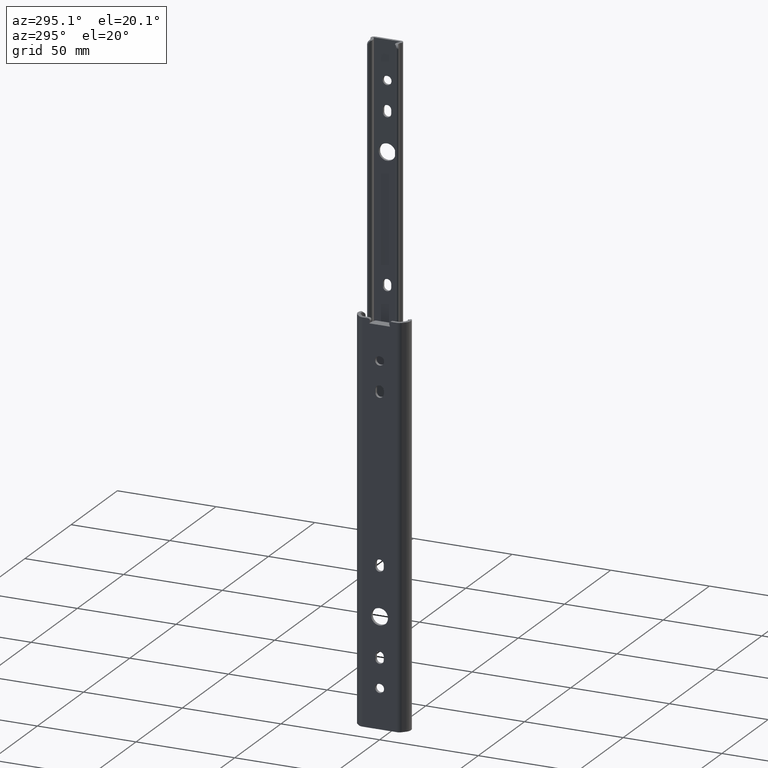
[diagram: clean part render]
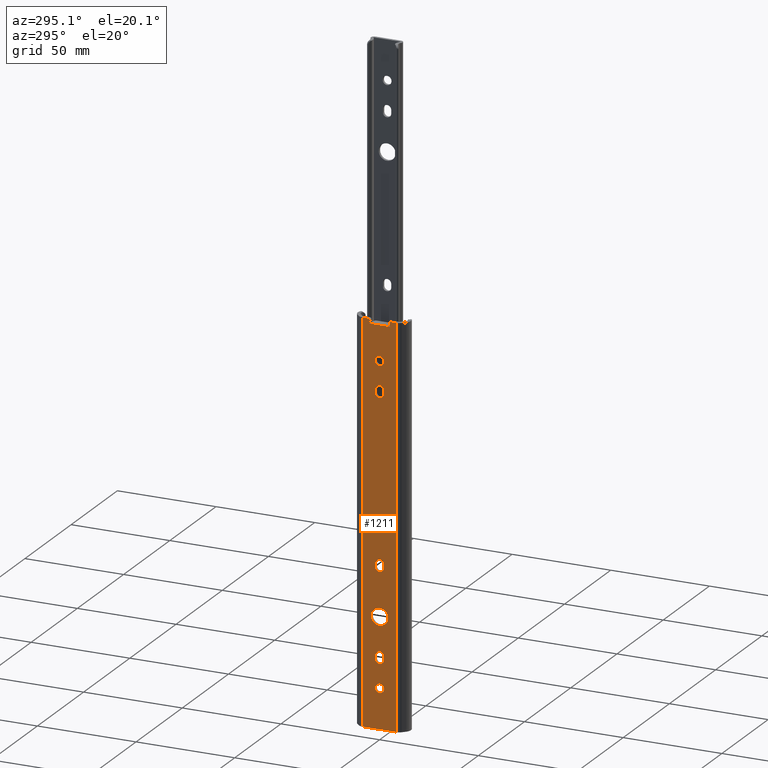
[diagram: same view with one face highlighted and labeled with its STEP entity id]
A machine part, auxiliary view. The second image highlights one B-rep face of the part: STEP entity #1211.
In plain terms, the highlighted planar face has unit normal (-1, 0, 0).
Its self-contained STEP definition (entity closure, byte-faithful):
#5 = DIRECTION ( 'NONE',  ( 0.0000000000000000000, 0.0000000000000000000, -1.000000000000000000 ) ) ;
#26 = CARTESIAN_POINT ( 'NONE',  ( -3.404394821604483923E-14, 2.100000000000000089, -165.9000000000000057 ) ) ;
#46 = CIRCLE ( 'NONE', #3595, 2.099999999999997868 ) ;
#55 = ORIENTED_EDGE ( 'NONE', *, *, #4087, .T. ) ;
#57 = DIRECTION ( 'NONE',  ( 0.0000000000000000000, 2.409338161078941089E-16, -1.000000000000000000 ) ) ;
#66 = VERTEX_POINT ( 'NONE', #4151 ) ;
#69 = EDGE_CURVE ( 'NONE', #1494, #2689, #2999, .T. ) ;
#75 = CARTESIAN_POINT ( 'NONE',  ( 0.0000000000000000000, -5.250000000000000000, -2.400000000000000355 ) ) ;
#84 = DIRECTION ( 'NONE',  ( -1.000000000000000000, 0.0000000000000000000, 0.0000000000000000000 ) ) ;
#92 = VERTEX_POINT ( 'NONE', #2408 ) ;
#94 = ORIENTED_EDGE ( 'NONE', *, *, #4275, .T. ) ;
#109 = AXIS2_PLACEMENT_3D ( 'NONE', #1851, #506, #4131 ) ;
#111 = DIRECTION ( 'NONE',  ( 0.0000000000000000000, 0.0000000000000000000, -1.000000000000000000 ) ) ;
#118 = VERTEX_POINT ( 'NONE', #3427 ) ;
#135 = VERTEX_POINT ( 'NONE', #4050 ) ;
#148 = DIRECTION ( 'NONE',  ( 0.0000000000000000000, 0.0000000000000000000, -1.000000000000000000 ) ) ;
#151 = DIRECTION ( 'NONE',  ( 1.000000000000000000, 0.0000000000000000000, 0.0000000000000000000 ) ) ;
#170 = AXIS2_PLACEMENT_3D ( 'NONE', #3646, #671, #3625 ) ;
#172 = AXIS2_PLACEMENT_3D ( 'NONE', #841, #151, #111 ) ;
#176 = AXIS2_PLACEMENT_3D ( 'NONE', #4255, #3964, #2253 ) ;
#194 = LINE ( 'NONE', #494, #4133 ) ;
#200 = VERTEX_POINT ( 'NONE', #75 ) ;
#203 = LINE ( 'NONE', #1532, #3616 ) ;
#222 = FACE_BOUND ( 'NONE', #3306, .T. ) ;
#302 = FACE_BOUND ( 'NONE', #4254, .T. ) ;
#307 = VECTOR ( 'NONE', #1118, 1000.000000000000000 ) ;
#359 = CIRCLE ( 'NONE', #2865, 2.250000000000001776 ) ;
#367 = CARTESIAN_POINT ( 'NONE',  ( -3.404394821604483923E-14, 2.100000000000000089, -119.1000000000000085 ) ) ;
#369 = EDGE_CURVE ( 'NONE', #752, #2101, #1841, .T. ) ;
#402 = ORIENTED_EDGE ( 'NONE', *, *, #1991, .F. ) ;
#408 = ORIENTED_EDGE ( 'NONE', *, *, #3871, .T. ) ;
#410 = CARTESIAN_POINT ( 'NONE',  ( -3.404394821604483923E-14, 0.0000000000000000000, -20.00000000000000000 ) ) ;
#440 = VECTOR ( 'NONE', #2063, 1000.000000000000000 ) ;
#444 = EDGE_CURVE ( 'NONE', #588, #1337, #359, .T. ) ;
#475 = ORIENTED_EDGE ( 'NONE', *, *, #1223, .T. ) ;
#477 = DIRECTION ( 'NONE',  ( 0.0000000000000000000, -0.2982749931359470752, -0.9544799780350297080 ) ) ;
#494 = CARTESIAN_POINT ( 'NONE',  ( -3.404394821604483923E-14, -2.100000000000000089, -34.10000000000000853 ) ) ;
#505 = CARTESIAN_POINT ( 'NONE',  ( 0.0000000000000000000, 5.860190913390014522, 0.0000000000000000000 ) ) ;
#506 = DIRECTION ( 'NONE',  ( 1.000000000000000000, 0.0000000000000000000, 0.0000000000000000000 ) ) ;
#535 = CARTESIAN_POINT ( 'NONE',  ( 0.0000000000000000000, 5.250000000000000000, -2.400000000000000355 ) ) ;
#538 = CARTESIAN_POINT ( 'NONE',  ( 0.0000000000000000000, -4.905710935354983704, -1.298274993135946964 ) ) ;
#555 = CARTESIAN_POINT ( 'NONE',  ( -3.404394821604483923E-14, 3.306546357697844366E-16, -167.9999999999999716 ) ) ;
#588 = VERTEX_POINT ( 'NONE', #3380 ) ;
#597 = AXIS2_PLACEMENT_3D ( 'NONE', #1491, #2821, #4142 ) ;
#618 = DIRECTION ( 'NONE',  ( 0.0000000000000000000, -1.000000000000000000, 0.0000000000000000000 ) ) ;
#621 = VERTEX_POINT ( 'NONE', #26 ) ;
#659 = EDGE_CURVE ( 'NONE', #200, #752, #3742, .T. ) ;
#668 = ORIENTED_EDGE ( 'NONE', *, *, #369, .T. ) ;
#671 = DIRECTION ( 'NONE',  ( 1.000000000000000000, 0.0000000000000000000, 0.0000000000000000000 ) ) ;
#681 = EDGE_CURVE ( 'NONE', #621, #2280, #3010, .T. ) ;
#692 = EDGE_CURVE ( 'NONE', #3339, #3076, #1058, .T. ) ;
#698 = CARTESIAN_POINT ( 'NONE',  ( -3.404394821604483923E-14, 0.0000000000000000000, -182.2500000000000000 ) ) ;
#702 = DIRECTION ( 'NONE',  ( 0.0000000000000000000, 0.0000000000000000000, -1.000000000000000000 ) ) ;
#752 = VERTEX_POINT ( 'NONE', #535 ) ;
#770 = CARTESIAN_POINT ( 'NONE',  ( 0.0000000000000000000, 4.905710935354983704, -1.298274993135947186 ) ) ;
#774 = DIRECTION ( 'NONE',  ( 0.0000000000000000000, 1.000000000000000000, 0.0000000000000000000 ) ) ;
#775 = VERTEX_POINT ( 'NONE', #884 ) ;
#780 = VERTEX_POINT ( 'NONE', #4138 ) ;
#807 = DIRECTION ( 'NONE',  ( 1.000000000000000000, 0.0000000000000000000, 0.0000000000000000000 ) ) ;
#815 = AXIS2_PLACEMENT_3D ( 'NONE', #1731, #1751, #3357 ) ;
#836 = EDGE_CURVE ( 'NONE', #92, #1252, #203, .T. ) ;
#839 = CARTESIAN_POINT ( 'NONE',  ( 0.0000000000000000000, -5.860190913390013634, 0.0000000000000000000 ) ) ;
#841 = CARTESIAN_POINT ( 'NONE',  ( -3.404394821604483923E-14, 0.0000000000000000000, -145.0000000000000284 ) ) ;
#855 = VECTOR ( 'NONE', #2687, 1000.000000000000000 ) ;
#870 = DIRECTION ( 'NONE',  ( 0.0000000000000000000, 0.0000000000000000000, -1.000000000000000000 ) ) ;
#884 = CARTESIAN_POINT ( 'NONE',  ( -3.404394821604483923E-14, -2.100000000000000089, -164.1000000000000227 ) ) ;
#901 = FACE_OUTER_BOUND ( 'NONE', #3181, .T. ) ;
#950 = LINE ( 'NONE', #1620, #3312 ) ;
#955 = VECTOR ( 'NONE', #1024, 1000.000000000000000 ) ;
#968 = FACE_BOUND ( 'NONE', #994, .T. ) ;
#994 = EDGE_LOOP ( 'NONE', ( #2376, #2972 ) ) ;
#1005 = EDGE_CURVE ( 'NONE', #2689, #1747, #1663, .T. ) ;
#1013 = AXIS2_PLACEMENT_3D ( 'NONE', #2213, #807, #2539 ) ;
#1024 = DIRECTION ( 'NONE',  ( -0.0000000000000000000, -2.409338161078904111E-16, 1.000000000000000000 ) ) ;
#1051 = AXIS2_PLACEMENT_3D ( 'NONE', #3066, #84, #3973 ) ;
#1053 = VERTEX_POINT ( 'NONE', #3352 ) ;
#1058 = CIRCLE ( 'NONE', #2171, 1.000000000000000000 ) ;
#1071 = PLANE ( 'NONE',  #1051 ) ;
#1080 = ORIENTED_EDGE ( 'NONE', *, *, #69, .T. ) ;
#1110 = CARTESIAN_POINT ( 'NONE',  ( 0.0000000000000000000, 8.689360748630832632, -200.0000000000000000 ) ) ;
#1118 = DIRECTION ( 'NONE',  ( -0.0000000000000000000, -1.000000000000000000, -0.0000000000000000000 ) ) ;
#1131 = VECTOR ( 'NONE', #774, 1000.000000000000000 ) ;
#1180 = ORIENTED_EDGE ( 'NONE', *, *, #3848, .T. ) ;
#1207 = VERTEX_POINT ( 'NONE', #3937 ) ;
#1211 = ADVANCED_FACE ( 'NONE', ( #968, #1959, #222, #302, #1896, #3533, #901 ), #1071, .T. ) ;
#1223 = EDGE_CURVE ( 'NONE', #1747, #3504, #3484, .T. ) ;
#1225 = VECTOR ( 'NONE', #57, 1000.000000000000000 ) ;
#1247 = EDGE_CURVE ( 'NONE', #66, #1494, #1741, .T. ) ;
#1252 = VERTEX_POINT ( 'NONE', #3392 ) ;
#1326 = VECTOR ( 'NONE', #2635, 1000.000000000000000 ) ;
#1337 = VERTEX_POINT ( 'NONE', #698 ) ;
#1354 = CIRCLE ( 'NONE', #176, 1.000000000000000000 ) ;
#1355 = CARTESIAN_POINT ( 'NONE',  ( -3.404394821604483923E-14, 2.100000000000000089, -164.1000000000000227 ) ) ;
#1358 = AXIS2_PLACEMENT_3D ( 'NONE', #410, #3129, #148 ) ;
#1406 = EDGE_CURVE ( 'NONE', #4044, #3271, #3915, .T. ) ;
#1420 = ORIENTED_EDGE ( 'NONE', *, *, #444, .T. ) ;
#1444 = VERTEX_POINT ( 'NONE', #505 ) ;
#1473 = DIRECTION ( 'NONE',  ( 0.0000000000000000000, 2.409338161078904111E-16, -1.000000000000000000 ) ) ;
#1483 = ORIENTED_EDGE ( 'NONE', *, *, #659, .T. ) ;
#1484 = CARTESIAN_POINT ( 'NONE',  ( 0.0000000000000000000, -8.689360748630832632, 0.0000000000000000000 ) ) ;
#1491 = CARTESIAN_POINT ( 'NONE',  ( -3.404394821604483923E-14, 3.306546357697844366E-16, -35.89999999999999858 ) ) ;
#1494 = VERTEX_POINT ( 'NONE', #2110 ) ;
#1498 = AXIS2_PLACEMENT_3D ( 'NONE', #2518, #1540, #870 ) ;
#1514 = CARTESIAN_POINT ( 'NONE',  ( 0.0000000000000000000, -5.860190913390013634, -1.000000000000000000 ) ) ;
#1519 = ORIENTED_EDGE ( 'NONE', *, *, #692, .T. ) ;
#1520 = DIRECTION ( 'NONE',  ( 0.0000000000000000000, -0.2982749931359470197, 0.9544799780350297080 ) ) ;
#1526 = CARTESIAN_POINT ( 'NONE',  ( 0.0000000000000000000, -2.099999999999999201, -165.9000000000000057 ) ) ;
#1532 = CARTESIAN_POINT ( 'NONE',  ( 0.0000000000000000000, -8.689360748630832632, -200.0000000000000000 ) ) ;
#1540 = DIRECTION ( 'NONE',  ( 1.000000000000000000, 0.0000000000000000000, 0.0000000000000000000 ) ) ;
#1542 = CARTESIAN_POINT ( 'NONE',  ( -3.404394821604483923E-14, -2.407412430484044816E-32, -119.1000000000000085 ) ) ;
#1562 = AXIS2_PLACEMENT_3D ( 'NONE', #3931, #1613, #3866 ) ;
#1577 = EDGE_CURVE ( 'NONE', #3401, #3888, #3085, .T. ) ;
#1590 = CARTESIAN_POINT ( 'NONE',  ( -3.404394821604483923E-14, 3.306546357697844366E-16, -123.0000000000000142 ) ) ;
#1604 = ORIENTED_EDGE ( 'NONE', *, *, #1005, .T. ) ;
#1613 = DIRECTION ( 'NONE',  ( 1.000000000000000000, 0.0000000000000000000, 0.0000000000000000000 ) ) ;
#1620 = CARTESIAN_POINT ( 'NONE',  ( 0.0000000000000000000, 8.689360748630832632, -200.0000000000000000 ) ) ;
#1663 = LINE ( 'NONE', #3657, #3063 ) ;
#1671 = LINE ( 'NONE', #3645, #955 ) ;
#1731 = CARTESIAN_POINT ( 'NONE',  ( -3.404394821604483923E-14, 3.306546357697844366E-16, -165.9000000000000057 ) ) ;
#1741 = LINE ( 'NONE', #367, #1326 ) ;
#1742 = CARTESIAN_POINT ( 'NONE',  ( -3.404394821604483923E-14, 0.0000000000000000000, -22.25000000000000000 ) ) ;
#1747 = VERTEX_POINT ( 'NONE', #3281 ) ;
#1751 = DIRECTION ( 'NONE',  ( 1.000000000000000000, 0.0000000000000000000, 0.0000000000000000000 ) ) ;
#1755 = CARTESIAN_POINT ( 'NONE',  ( -3.404394821604483923E-14, -2.100000000000000089, -164.1000000000000227 ) ) ;
#1756 = EDGE_CURVE ( 'NONE', #3339, #1252, #4285, .T. ) ;
#1824 = EDGE_CURVE ( 'NONE', #1053, #135, #2412, .T. ) ;
#1841 = LINE ( 'NONE', #3171, #3554 ) ;
#1851 = CARTESIAN_POINT ( 'NONE',  ( -3.404394821604483923E-14, -2.407412430484044816E-32, -164.1000000000000227 ) ) ;
#1859 = EDGE_LOOP ( 'NONE', ( #1080, #1604, #475, #3563, #1926 ) ) ;
#1896 = FACE_BOUND ( 'NONE', #1859, .T. ) ;
#1897 = DIRECTION ( 'NONE',  ( 0.0000000000000000000, 0.0000000000000000000, 1.000000000000000000 ) ) ;
#1926 = ORIENTED_EDGE ( 'NONE', *, *, #1247, .T. ) ;
#1945 = VERTEX_POINT ( 'NONE', #2559 ) ;
#1959 = FACE_BOUND ( 'NONE', #2722, .T. ) ;
#1991 = EDGE_CURVE ( 'NONE', #135, #1444, #2838, .T. ) ;
#2035 = DIRECTION ( 'NONE',  ( -0.0000000000000000000, -1.000000000000000000, -0.0000000000000000000 ) ) ;
#2061 = AXIS2_PLACEMENT_3D ( 'NONE', #3676, #2071, #702 ) ;
#2063 = DIRECTION ( 'NONE',  ( 0.0000000000000000000, 0.0000000000000000000, 1.000000000000000000 ) ) ;
#2071 = DIRECTION ( 'NONE',  ( 1.000000000000000000, 0.0000000000000000000, 0.0000000000000000000 ) ) ;
#2101 = VERTEX_POINT ( 'NONE', #770 ) ;
#2107 = ORIENTED_EDGE ( 'NONE', *, *, #2554, .T. ) ;
#2110 = CARTESIAN_POINT ( 'NONE',  ( -3.404394821604483923E-14, 2.100000000000000089, -119.1000000000000085 ) ) ;
#2171 = AXIS2_PLACEMENT_3D ( 'NONE', #1514, #2857, #3812 ) ;
#2180 = ORIENTED_EDGE ( 'NONE', *, *, #1406, .T. ) ;
#2192 = CIRCLE ( 'NONE', #1013, 2.249999999999998668 ) ;
#2209 = VERTEX_POINT ( 'NONE', #1526 ) ;
#2213 = CARTESIAN_POINT ( 'NONE',  ( -3.404394821604483923E-14, 0.0000000000000000000, -20.00000000000000000 ) ) ;
#2235 = ORIENTED_EDGE ( 'NONE', *, *, #1756, .F. ) ;
#2253 = DIRECTION ( 'NONE',  ( 0.0000000000000000000, 0.0000000000000000000, 1.000000000000000000 ) ) ;
#2267 = CIRCLE ( 'NONE', #597, 2.099999999999997868 ) ;
#2270 = AXIS2_PLACEMENT_3D ( 'NONE', #2382, #4078, #3750 ) ;
#2280 = VERTEX_POINT ( 'NONE', #3905 ) ;
#2285 = EDGE_CURVE ( 'NONE', #3100, #621, #2535, .T. ) ;
#2306 = EDGE_LOOP ( 'NONE', ( #3962, #2107, #1180, #3400, #3765 ) ) ;
#2315 = ORIENTED_EDGE ( 'NONE', *, *, #1824, .F. ) ;
#2318 = CARTESIAN_POINT ( 'NONE',  ( -3.404394821604483923E-14, -2.100000000000000089, -119.1000000000000085 ) ) ;
#2333 = DIRECTION ( 'NONE',  ( 0.0000000000000000000, 2.409338161078904111E-16, -1.000000000000000000 ) ) ;
#2376 = ORIENTED_EDGE ( 'NONE', *, *, #2685, .T. ) ;
#2382 = CARTESIAN_POINT ( 'NONE',  ( -3.404394821604483923E-14, 3.306546357697844366E-16, -120.9000000000000057 ) ) ;
#2408 = CARTESIAN_POINT ( 'NONE',  ( 0.0000000000000000000, -8.689360748630832632, -200.0000000000000000 ) ) ;
#2412 = LINE ( 'NONE', #1110, #440 ) ;
#2518 = CARTESIAN_POINT ( 'NONE',  ( -3.404394821604483923E-14, 0.0000000000000000000, -180.0000000000000000 ) ) ;
#2535 = CIRCLE ( 'NONE', #170, 2.099999999999990763 ) ;
#2539 = DIRECTION ( 'NONE',  ( 0.0000000000000000000, 0.0000000000000000000, -1.000000000000000000 ) ) ;
#2545 = VECTOR ( 'NONE', #477, 1000.000000000000000 ) ;
#2554 = EDGE_CURVE ( 'NONE', #3888, #1945, #194, .T. ) ;
#2556 = DIRECTION ( 'NONE',  ( 1.000000000000000000, 0.0000000000000000000, 0.0000000000000000000 ) ) ;
#2559 = CARTESIAN_POINT ( 'NONE',  ( 0.0000000000000000000, -2.099999999999999201, -35.90000000000001279 ) ) ;
#2593 = CARTESIAN_POINT ( 'NONE',  ( -3.404394821604483923E-14, 3.306546357697844366E-16, -35.89999999999999858 ) ) ;
#2632 = ORIENTED_EDGE ( 'NONE', *, *, #2949, .T. ) ;
#2635 = DIRECTION ( 'NONE',  ( -0.0000000000000000000, -2.409338161078904111E-16, 1.000000000000000000 ) ) ;
#2658 = CARTESIAN_POINT ( 'NONE',  ( -3.404394821604483923E-14, 0.0000000000000000000, -149.2500000000000284 ) ) ;
#2659 = EDGE_CURVE ( 'NONE', #1337, #588, #2953, .T. ) ;
#2670 = CARTESIAN_POINT ( 'NONE',  ( 0.0000000000000000000, -8.689360748630832632, 0.0000000000000000000 ) ) ;
#2685 = EDGE_CURVE ( 'NONE', #4156, #780, #2192, .T. ) ;
#2687 = DIRECTION ( 'NONE',  ( -0.0000000000000000000, -2.409338161078941089E-16, 1.000000000000000000 ) ) ;
#2689 = VERTEX_POINT ( 'NONE', #2318 ) ;
#2704 = CARTESIAN_POINT ( 'NONE',  ( 0.0000000000000000000, 5.250000000000000000, -2.400000000000000355 ) ) ;
#2707 = EDGE_CURVE ( 'NONE', #2101, #1444, #1354, .T. ) ;
#2722 = EDGE_LOOP ( 'NONE', ( #2180, #55 ) ) ;
#2736 = VECTOR ( 'NONE', #2035, 1000.000000000000000 ) ;
#2737 = LINE ( 'NONE', #3462, #2545 ) ;
#2821 = DIRECTION ( 'NONE',  ( 1.000000000000000000, 0.0000000000000000000, 0.0000000000000000000 ) ) ;
#2833 = CARTESIAN_POINT ( 'NONE',  ( -3.404394821604483923E-14, 2.100000000000000089, -34.10000000000000853 ) ) ;
#2838 = LINE ( 'NONE', #1484, #307 ) ;
#2857 = DIRECTION ( 'NONE',  ( -1.000000000000000000, 0.0000000000000000000, 0.0000000000000000000 ) ) ;
#2858 = ORIENTED_EDGE ( 'NONE', *, *, #2707, .T. ) ;
#2865 = AXIS2_PLACEMENT_3D ( 'NONE', #3601, #2989, #5 ) ;
#2867 = DIRECTION ( 'NONE',  ( 0.0000000000000000000, 0.0000000000000000000, -1.000000000000000000 ) ) ;
#2949 = EDGE_CURVE ( 'NONE', #2209, #3100, #2959, .T. ) ;
#2953 = CIRCLE ( 'NONE', #1498, 2.250000000000001776 ) ;
#2959 = CIRCLE ( 'NONE', #815, 2.099999999999990763 ) ;
#2972 = ORIENTED_EDGE ( 'NONE', *, *, #3268, .T. ) ;
#2989 = DIRECTION ( 'NONE',  ( 1.000000000000000000, 0.0000000000000000000, 0.0000000000000000000 ) ) ;
#2999 = CIRCLE ( 'NONE', #3206, 2.100000000000004530 ) ;
#3010 = LINE ( 'NONE', #1355, #855 ) ;
#3024 = DIRECTION ( 'NONE',  ( 1.000000000000000000, 0.0000000000000000000, 0.0000000000000000000 ) ) ;
#3034 = CIRCLE ( 'NONE', #2061, 4.250000000000003553 ) ;
#3044 = CARTESIAN_POINT ( 'NONE',  ( -3.404394821604483923E-14, 5.204748896376259574E-16, -140.7500000000000000 ) ) ;
#3063 = VECTOR ( 'NONE', #2333, 1000.000000000000000 ) ;
#3066 = CARTESIAN_POINT ( 'NONE',  ( 0.0000000000000000000, -8.689360748630832632, -200.0000000000000000 ) ) ;
#3070 = ORIENTED_EDGE ( 'NONE', *, *, #3662, .T. ) ;
#3076 = VERTEX_POINT ( 'NONE', #538 ) ;
#3079 = EDGE_CURVE ( 'NONE', #1207, #118, #2267, .T. ) ;
#3085 = CIRCLE ( 'NONE', #1562, 2.099999999999997868 ) ;
#3091 = CIRCLE ( 'NONE', #109, 2.099999999999990763 ) ;
#3100 = VERTEX_POINT ( 'NONE', #555 ) ;
#3103 = LINE ( 'NONE', #1755, #1225 ) ;
#3129 = DIRECTION ( 'NONE',  ( 1.000000000000000000, 0.0000000000000000000, 0.0000000000000000000 ) ) ;
#3171 = CARTESIAN_POINT ( 'NONE',  ( 0.0000000000000000000, 5.250000000000000000, -2.400000000000000355 ) ) ;
#3181 = EDGE_LOOP ( 'NONE', ( #2235, #1519, #4160, #1483, #668, #2858, #402, #2315, #408, #3876 ) ) ;
#3206 = AXIS2_PLACEMENT_3D ( 'NONE', #1542, #3840, #2867 ) ;
#3268 = EDGE_CURVE ( 'NONE', #780, #4156, #3649, .T. ) ;
#3271 = VERTEX_POINT ( 'NONE', #3044 ) ;
#3281 = CARTESIAN_POINT ( 'NONE',  ( 0.0000000000000000000, -2.099999999999999645, -120.9000000000000057 ) ) ;
#3291 = EDGE_CURVE ( 'NONE', #3076, #200, #2737, .T. ) ;
#3306 = EDGE_LOOP ( 'NONE', ( #4049, #1420 ) ) ;
#3312 = VECTOR ( 'NONE', #618, 1000.000000000000000 ) ;
#3339 = VERTEX_POINT ( 'NONE', #839 ) ;
#3352 = CARTESIAN_POINT ( 'NONE',  ( 0.0000000000000000000, 8.689360748630832632, -200.0000000000000000 ) ) ;
#3357 = DIRECTION ( 'NONE',  ( 0.0000000000000000000, 0.0000000000000000000, -1.000000000000000000 ) ) ;
#3380 = CARTESIAN_POINT ( 'NONE',  ( -3.404394821604483923E-14, 2.755455298081564006E-16, -177.7500000000000000 ) ) ;
#3392 = CARTESIAN_POINT ( 'NONE',  ( 0.0000000000000000000, -8.689360748630832632, 0.0000000000000000000 ) ) ;
#3400 = ORIENTED_EDGE ( 'NONE', *, *, #3079, .T. ) ;
#3401 = VERTEX_POINT ( 'NONE', #2833 ) ;
#3403 = ORIENTED_EDGE ( 'NONE', *, *, #2285, .T. ) ;
#3427 = CARTESIAN_POINT ( 'NONE',  ( -3.404394821604483923E-14, 2.100000000000000089, -35.89999999999999858 ) ) ;
#3462 = CARTESIAN_POINT ( 'NONE',  ( 0.0000000000000000000, -5.250000000000000000, -2.400000000000000355 ) ) ;
#3484 = CIRCLE ( 'NONE', #3891, 2.100000000000004530 ) ;
#3504 = VERTEX_POINT ( 'NONE', #1590 ) ;
#3533 = FACE_BOUND ( 'NONE', #2306, .T. ) ;
#3552 = CARTESIAN_POINT ( 'NONE',  ( -3.404394821604483923E-14, -2.100000000000000089, -34.10000000000000853 ) ) ;
#3554 = VECTOR ( 'NONE', #1520, 1000.000000000000000 ) ;
#3563 = ORIENTED_EDGE ( 'NONE', *, *, #3663, .T. ) ;
#3595 = AXIS2_PLACEMENT_3D ( 'NONE', #2593, #2556, #3939 ) ;
#3601 = CARTESIAN_POINT ( 'NONE',  ( -3.404394821604483923E-14, 0.0000000000000000000, -180.0000000000000000 ) ) ;
#3616 = VECTOR ( 'NONE', #1897, 1000.000000000000000 ) ;
#3625 = DIRECTION ( 'NONE',  ( 0.0000000000000000000, 0.0000000000000000000, -1.000000000000000000 ) ) ;
#3631 = EDGE_CURVE ( 'NONE', #118, #3401, #1671, .T. ) ;
#3645 = CARTESIAN_POINT ( 'NONE',  ( -3.404394821604483923E-14, 2.100000000000000089, -34.10000000000000853 ) ) ;
#3646 = CARTESIAN_POINT ( 'NONE',  ( -3.404394821604483923E-14, 3.306546357697844366E-16, -165.9000000000000057 ) ) ;
#3649 = CIRCLE ( 'NONE', #1358, 2.249999999999998668 ) ;
#3657 = CARTESIAN_POINT ( 'NONE',  ( -3.404394821604483923E-14, -2.100000000000000089, -119.1000000000000085 ) ) ;
#3662 = EDGE_CURVE ( 'NONE', #775, #2209, #3103, .T. ) ;
#3663 = EDGE_CURVE ( 'NONE', #3504, #66, #3996, .T. ) ;
#3676 = CARTESIAN_POINT ( 'NONE',  ( -3.404394821604483923E-14, 0.0000000000000000000, -145.0000000000000284 ) ) ;
#3724 = ORIENTED_EDGE ( 'NONE', *, *, #681, .T. ) ;
#3742 = LINE ( 'NONE', #2704, #1131 ) ;
#3750 = DIRECTION ( 'NONE',  ( 0.0000000000000000000, 0.0000000000000000000, -1.000000000000000000 ) ) ;
#3765 = ORIENTED_EDGE ( 'NONE', *, *, #3631, .T. ) ;
#3812 = DIRECTION ( 'NONE',  ( 0.0000000000000000000, 0.0000000000000000000, 1.000000000000000000 ) ) ;
#3840 = DIRECTION ( 'NONE',  ( 1.000000000000000000, 0.0000000000000000000, 0.0000000000000000000 ) ) ;
#3848 = EDGE_CURVE ( 'NONE', #1945, #1207, #46, .T. ) ;
#3866 = DIRECTION ( 'NONE',  ( 0.0000000000000000000, 0.0000000000000000000, -1.000000000000000000 ) ) ;
#3871 = EDGE_CURVE ( 'NONE', #1053, #92, #950, .T. ) ;
#3876 = ORIENTED_EDGE ( 'NONE', *, *, #836, .T. ) ;
#3888 = VERTEX_POINT ( 'NONE', #3552 ) ;
#3891 = AXIS2_PLACEMENT_3D ( 'NONE', #4039, #3024, #3953 ) ;
#3905 = CARTESIAN_POINT ( 'NONE',  ( -3.404394821604483923E-14, 2.100000000000000089, -164.1000000000000227 ) ) ;
#3915 = CIRCLE ( 'NONE', #172, 4.250000000000003553 ) ;
#3931 = CARTESIAN_POINT ( 'NONE',  ( -3.404394821604483923E-14, -2.407412430484044816E-32, -34.10000000000000853 ) ) ;
#3937 = CARTESIAN_POINT ( 'NONE',  ( -3.404394821604483923E-14, 3.306546357697844366E-16, -38.00000000000000000 ) ) ;
#3939 = DIRECTION ( 'NONE',  ( 0.0000000000000000000, 0.0000000000000000000, -1.000000000000000000 ) ) ;
#3953 = DIRECTION ( 'NONE',  ( 0.0000000000000000000, 0.0000000000000000000, -1.000000000000000000 ) ) ;
#3962 = ORIENTED_EDGE ( 'NONE', *, *, #1577, .T. ) ;
#3964 = DIRECTION ( 'NONE',  ( -1.000000000000000000, 0.0000000000000000000, 0.0000000000000000000 ) ) ;
#3973 = DIRECTION ( 'NONE',  ( 0.0000000000000000000, 0.0000000000000000000, 1.000000000000000000 ) ) ;
#3996 = CIRCLE ( 'NONE', #2270, 2.100000000000004530 ) ;
#4039 = CARTESIAN_POINT ( 'NONE',  ( -3.404394821604483923E-14, 3.306546357697844366E-16, -120.9000000000000057 ) ) ;
#4044 = VERTEX_POINT ( 'NONE', #2658 ) ;
#4049 = ORIENTED_EDGE ( 'NONE', *, *, #2659, .T. ) ;
#4050 = CARTESIAN_POINT ( 'NONE',  ( 0.0000000000000000000, 8.689360748630832632, 0.0000000000000000000 ) ) ;
#4078 = DIRECTION ( 'NONE',  ( 1.000000000000000000, 0.0000000000000000000, 0.0000000000000000000 ) ) ;
#4087 = EDGE_CURVE ( 'NONE', #3271, #4044, #3034, .T. ) ;
#4131 = DIRECTION ( 'NONE',  ( 0.0000000000000000000, 0.0000000000000000000, -1.000000000000000000 ) ) ;
#4133 = VECTOR ( 'NONE', #1473, 1000.000000000000000 ) ;
#4138 = CARTESIAN_POINT ( 'NONE',  ( -3.404394821604483923E-14, 2.755455298081543792E-16, -17.75000000000000355 ) ) ;
#4142 = DIRECTION ( 'NONE',  ( 0.0000000000000000000, 0.0000000000000000000, -1.000000000000000000 ) ) ;
#4151 = CARTESIAN_POINT ( 'NONE',  ( -3.404394821604483923E-14, 2.100000000000000089, -120.9000000000000057 ) ) ;
#4156 = VERTEX_POINT ( 'NONE', #1742 ) ;
#4160 = ORIENTED_EDGE ( 'NONE', *, *, #3291, .T. ) ;
#4254 = EDGE_LOOP ( 'NONE', ( #94, #3070, #2632, #3403, #3724 ) ) ;
#4255 = CARTESIAN_POINT ( 'NONE',  ( 0.0000000000000000000, 5.860190913390014522, -1.000000000000000000 ) ) ;
#4275 = EDGE_CURVE ( 'NONE', #2280, #775, #3091, .T. ) ;
#4285 = LINE ( 'NONE', #2670, #2736 ) ;